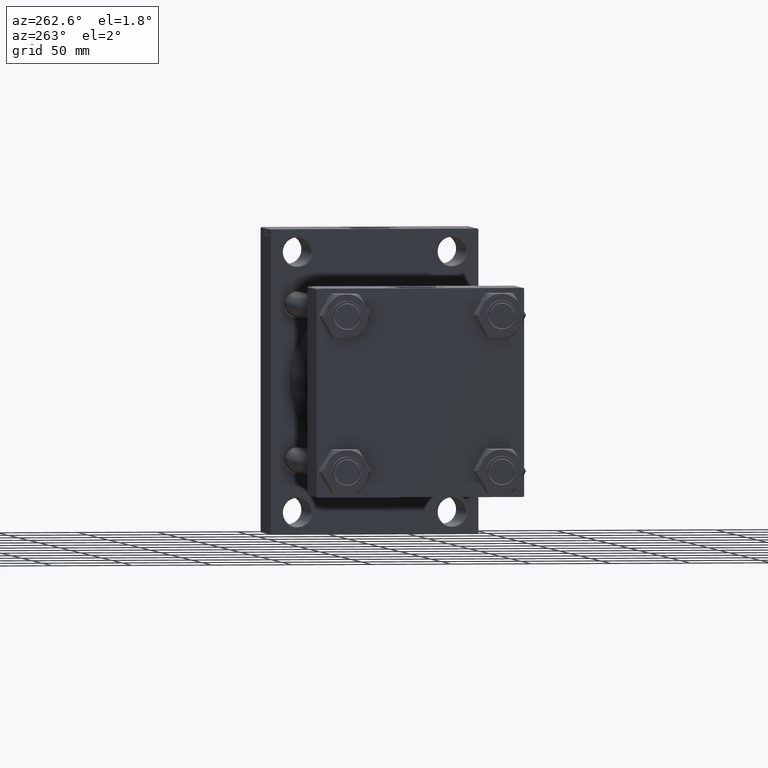
[diagram: clean part render]
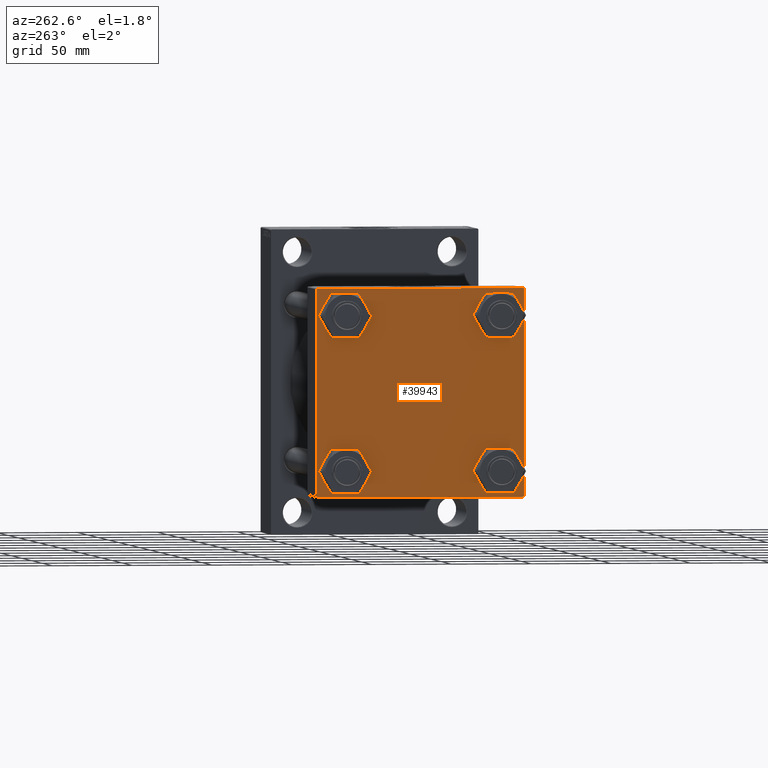
[diagram: same view with one face highlighted and labeled with its STEP entity id]
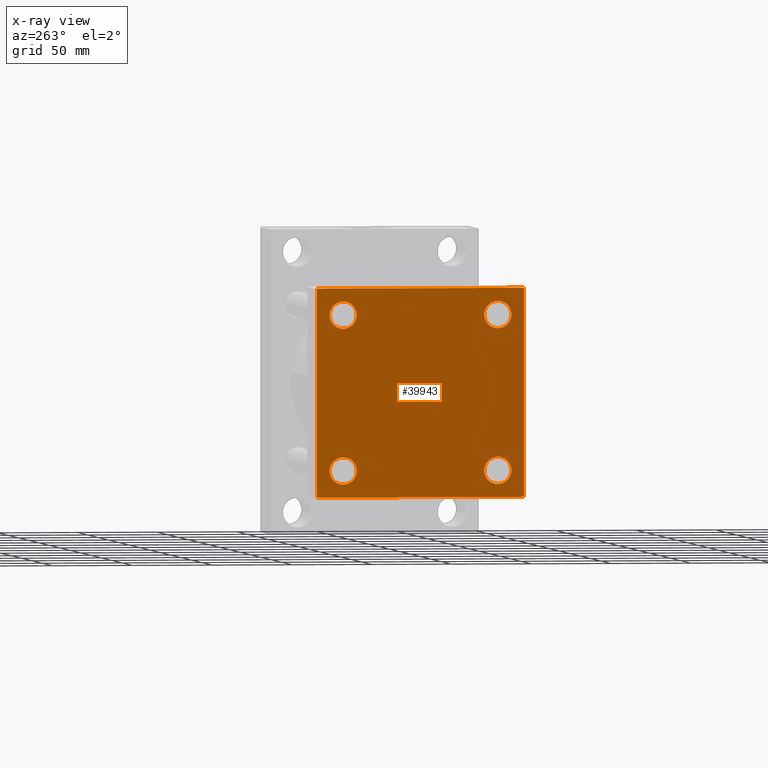
[diagram: x-ray of the same camera — body ghosted, the highlighted face saturated]
A machine part, auxiliary view. The second image highlights one B-rep face of the part: STEP entity #39943.
The next image is the same camera in x-ray: the body ghosted, the highlighted face saturated — about 0% of this face is hidden behind the body in this view.
In plain terms, the highlighted planar face has unit normal (-1, 0, 0).
Its self-contained STEP definition (entity closure, byte-faithful):
#82 = DIRECTION ( 'NONE',  ( 0.000000000000000000, 0.000000000000000000, 1.000000000000000000 ) ) ;
#132 = ORIENTED_EDGE ( 'NONE', *, *, #45294, .T. ) ;
#336 = EDGE_LOOP ( 'NONE', ( #22134, #7282, #3020, #9704, #5856, #39464, #5318, #40330 ) ) ;
#428 = CIRCLE ( 'NONE', #14449, 8.500000000000007105 ) ;
#563 = AXIS2_PLACEMENT_3D ( 'NONE', #11394, #26051, #10925 ) ;
#889 = ORIENTED_EDGE ( 'NONE', *, *, #22890, .T. ) ;
#1000 = CARTESIAN_POINT ( 'NONE',  ( 0.000000000000000000, 65.00000000000000000, 65.00000000000001421 ) ) ;
#1407 = LINE ( 'NONE', #31193, #23632 ) ;
#1424 = FACE_BOUND ( 'NONE', #31023, .T. ) ;
#2214 = AXIS2_PLACEMENT_3D ( 'NONE', #20363, #41259, #16695 ) ;
#2627 = EDGE_LOOP ( 'NONE', ( #19814, #14907 ) ) ;
#3020 = ORIENTED_EDGE ( 'NONE', *, *, #16401, .T. ) ;
#3210 = DIRECTION ( 'NONE',  ( 1.000000000000000000, -0.000000000000000000, 0.000000000000000000 ) ) ;
#3513 = DIRECTION ( 'NONE',  ( 0.000000000000000000, 0.000000000000000000, -1.000000000000000000 ) ) ;
#3514 = EDGE_LOOP ( 'NONE', ( #12391, #31975 ) ) ;
#3668 = VERTEX_POINT ( 'NONE', #30855 ) ;
#3730 = CIRCLE ( 'NONE', #42780, 8.500000000000007105 ) ;
#3972 = VERTEX_POINT ( 'NONE', #13851 ) ;
#4038 = DIRECTION ( 'NONE',  ( 0.000000000000000000, -0.7071067811865279218, 0.7071067811865671127 ) ) ;
#4106 = DIRECTION ( 'NONE',  ( -1.000000000000000000, 0.000000000000000000, -0.000000000000000000 ) ) ;
#4394 = EDGE_CURVE ( 'NONE', #44506, #43543, #7440, .T. ) ;
#4460 = CIRCLE ( 'NONE', #563, 8.500000000000007105 ) ;
#4987 = CARTESIAN_POINT ( 'NONE',  ( 0.000000000000000000, 48.45000000000000995, 56.95000000000002416 ) ) ;
#5092 = DIRECTION ( 'NONE',  ( -0.000000000000000000, -0.7071067811865474617, -0.7071067811865474617 ) ) ;
#5318 = ORIENTED_EDGE ( 'NONE', *, *, #19158, .F. ) ;
#5416 = VERTEX_POINT ( 'NONE', #4987 ) ;
#5856 = ORIENTED_EDGE ( 'NONE', *, *, #4394, .F. ) ;
#7282 = ORIENTED_EDGE ( 'NONE', *, *, #46844, .T. ) ;
#7440 = LINE ( 'NONE', #26954, #45659 ) ;
#7816 = CIRCLE ( 'NONE', #22625, 8.500000000000007105 ) ;
#7892 = VERTEX_POINT ( 'NONE', #36570 ) ;
#8401 = DIRECTION ( 'NONE',  ( 0.000000000000000000, 0.000000000000000000, -1.000000000000000000 ) ) ;
#8439 = CIRCLE ( 'NONE', #2214, 8.500000000000007105 ) ;
#8518 = CARTESIAN_POINT ( 'NONE',  ( 0.000000000000000000, -65.00000000000000000, -64.49999999999991473 ) ) ;
#8730 = FACE_BOUND ( 'NONE', #33581, .T. ) ;
#9704 = ORIENTED_EDGE ( 'NONE', *, *, #10919, .T. ) ;
#9770 = CARTESIAN_POINT ( 'NONE',  ( 0.000000000000000000, 48.45000000000000995, 48.45000000000001705 ) ) ;
#10642 = VERTEX_POINT ( 'NONE', #31668 ) ;
#10919 = EDGE_CURVE ( 'NONE', #17568, #43543, #27404, .T. ) ;
#10925 = DIRECTION ( 'NONE',  ( 0.000000000000000000, 0.000000000000000000, 1.000000000000000000 ) ) ;
#11200 = VECTOR ( 'NONE', #4038, 1000.000000000000000 ) ;
#11394 = CARTESIAN_POINT ( 'NONE',  ( 0.000000000000000000, 48.45000000000000995, 48.45000000000001705 ) ) ;
#11903 = FACE_OUTER_BOUND ( 'NONE', #336, .T. ) ;
#12391 = ORIENTED_EDGE ( 'NONE', *, *, #36171, .T. ) ;
#13329 = EDGE_CURVE ( 'NONE', #45782, #30366, #1407, .T. ) ;
#13792 = LINE ( 'NONE', #21604, #18294 ) ;
#13820 = VERTEX_POINT ( 'NONE', #22534 ) ;
#13851 = CARTESIAN_POINT ( 'NONE',  ( 0.000000000000000000, 64.49999999999997158, -64.99999999999998579 ) ) ;
#14026 = CARTESIAN_POINT ( 'NONE',  ( 0.000000000000000000, -48.44999999999999574, -39.95000000000001705 ) ) ;
#14237 = LINE ( 'NONE', #47740, #18605 ) ;
#14449 = AXIS2_PLACEMENT_3D ( 'NONE', #30334, #37942, #19334 ) ;
#14907 = ORIENTED_EDGE ( 'NONE', *, *, #32196, .T. ) ;
#15966 = VECTOR ( 'NONE', #17377, 1000.000000000000000 ) ;
#16296 = FACE_BOUND ( 'NONE', #2627, .T. ) ;
#16401 = EDGE_CURVE ( 'NONE', #3972, #17568, #32301, .T. ) ;
#16695 = DIRECTION ( 'NONE',  ( 0.000000000000000000, 0.000000000000000000, 1.000000000000000000 ) ) ;
#17138 = CARTESIAN_POINT ( 'NONE',  ( 0.000000000000000000, 65.00000000000000000, 64.49999999999998579 ) ) ;
#17377 = DIRECTION ( 'NONE',  ( 0.000000000000000000, -1.000000000000000000, -1.067522139062650425E-16 ) ) ;
#17568 = VERTEX_POINT ( 'NONE', #44860 ) ;
#18090 = DIRECTION ( 'NONE',  ( 0.000000000000000000, 0.000000000000000000, 1.000000000000000000 ) ) ;
#18294 = VECTOR ( 'NONE', #21848, 1000.000000000000000 ) ;
#18605 = VECTOR ( 'NONE', #3513, 1000.000000000000000 ) ;
#18999 = PLANE ( 'NONE',  #24737 ) ;
#19158 = EDGE_CURVE ( 'NONE', #45782, #10642, #20741, .T. ) ;
#19334 = DIRECTION ( 'NONE',  ( 0.000000000000000000, 0.000000000000000000, 1.000000000000000000 ) ) ;
#19581 = DIRECTION ( 'NONE',  ( 1.000000000000000000, -0.000000000000000000, 0.000000000000000000 ) ) ;
#19660 = CARTESIAN_POINT ( 'NONE',  ( 0.000000000000000000, -48.44999999999999574, -56.95000000000003837 ) ) ;
#19781 = DIRECTION ( 'NONE',  ( 0.000000000000000000, -1.000000000000000000, -1.067522139062650425E-16 ) ) ;
#19814 = ORIENTED_EDGE ( 'NONE', *, *, #39502, .T. ) ;
#19957 = FACE_BOUND ( 'NONE', #3514, .T. ) ;
#20363 = CARTESIAN_POINT ( 'NONE',  ( 0.000000000000000000, -48.44999999999999574, 48.45000000000003126 ) ) ;
#20464 = EDGE_CURVE ( 'NONE', #29807, #21813, #33285, .T. ) ;
#20741 = LINE ( 'NONE', #1000, #32440 ) ;
#21604 = CARTESIAN_POINT ( 'NONE',  ( -0.000000000000000000, -64.74999999999819522, 64.75000000000179057 ) ) ;
#21813 = VERTEX_POINT ( 'NONE', #14026 ) ;
#21848 = DIRECTION ( 'NONE',  ( -0.000000000000000000, 0.7071067811865672237, 0.7071067811865279218 ) ) ;
#22052 = CARTESIAN_POINT ( 'NONE',  ( 0.000000000000000000, -48.44999999999999574, 39.95000000000001705 ) ) ;
#22134 = ORIENTED_EDGE ( 'NONE', *, *, #47982, .T. ) ;
#22353 = VERTEX_POINT ( 'NONE', #42319 ) ;
#22534 = CARTESIAN_POINT ( 'NONE',  ( 0.000000000000000000, 48.45000000000000995, -56.95000000000002416 ) ) ;
#22614 = CARTESIAN_POINT ( 'NONE',  ( 0.000000000000000000, -48.44999999999999574, -48.45000000000003126 ) ) ;
#22625 = AXIS2_PLACEMENT_3D ( 'NONE', #9770, #35933, #24652 ) ;
#22875 = DIRECTION ( 'NONE',  ( 0.000000000000000000, 0.7071067811865474617, -0.7071067811865474617 ) ) ;
#22890 = EDGE_CURVE ( 'NONE', #21813, #29807, #23172, .T. ) ;
#23172 = CIRCLE ( 'NONE', #36512, 8.500000000000007105 ) ;
#23632 = VECTOR ( 'NONE', #22875, 1000.000000000000114 ) ;
#23880 = AXIS2_PLACEMENT_3D ( 'NONE', #22614, #45128, #45364 ) ;
#24652 = DIRECTION ( 'NONE',  ( 0.000000000000000000, 0.000000000000000000, 1.000000000000000000 ) ) ;
#24658 = VERTEX_POINT ( 'NONE', #22052 ) ;
#24737 = AXIS2_PLACEMENT_3D ( 'NONE', #26803, #4106, #45901 ) ;
#24988 = ORIENTED_EDGE ( 'NONE', *, *, #20464, .T. ) ;
#25466 = CARTESIAN_POINT ( 'NONE',  ( 0.000000000000000000, 48.45000000000000995, -48.45000000000001705 ) ) ;
#25470 = CARTESIAN_POINT ( 'NONE',  ( 0.000000000000000000, -48.44999999999999574, -48.45000000000003126 ) ) ;
#25627 = CIRCLE ( 'NONE', #33458, 8.500000000000007105 ) ;
#26051 = DIRECTION ( 'NONE',  ( 1.000000000000000000, -0.000000000000000000, 0.000000000000000000 ) ) ;
#26374 = VECTOR ( 'NONE', #5092, 1000.000000000000114 ) ;
#26803 = CARTESIAN_POINT ( 'NONE',  ( 0.000000000000000000, 0.000000000000000000, 0.000000000000000000 ) ) ;
#26954 = CARTESIAN_POINT ( 'NONE',  ( 0.000000000000000000, -65.00000000000000000, 65.00000000000000000 ) ) ;
#27404 = LINE ( 'NONE', #37549, #11200 ) ;
#27600 = EDGE_CURVE ( 'NONE', #24658, #30361, #8439, .T. ) ;
#29145 = EDGE_CURVE ( 'NONE', #3668, #13820, #25627, .T. ) ;
#29807 = VERTEX_POINT ( 'NONE', #19660 ) ;
#30101 = DIRECTION ( 'NONE',  ( 1.000000000000000000, -0.000000000000000000, 0.000000000000000000 ) ) ;
#30334 = CARTESIAN_POINT ( 'NONE',  ( 0.000000000000000000, -48.44999999999999574, 48.45000000000003126 ) ) ;
#30361 = VERTEX_POINT ( 'NONE', #37628 ) ;
#30366 = VERTEX_POINT ( 'NONE', #17138 ) ;
#30855 = CARTESIAN_POINT ( 'NONE',  ( 0.000000000000000000, 48.45000000000000995, -39.95000000000000284 ) ) ;
#31023 = EDGE_LOOP ( 'NONE', ( #32246, #132 ) ) ;
#31193 = CARTESIAN_POINT ( 'NONE',  ( 0.000000000000000000, 64.74999999999998579, 64.74999999999998579 ) ) ;
#31668 = CARTESIAN_POINT ( 'NONE',  ( 0.000000000000000000, -64.49999999999997158, 65.00000000000000000 ) ) ;
#31975 = ORIENTED_EDGE ( 'NONE', *, *, #27600, .T. ) ;
#32196 = EDGE_CURVE ( 'NONE', #7892, #5416, #7816, .T. ) ;
#32246 = ORIENTED_EDGE ( 'NONE', *, *, #29145, .T. ) ;
#32301 = LINE ( 'NONE', #39668, #15966 ) ;
#32440 = VECTOR ( 'NONE', #19781, 1000.000000000000000 ) ;
#33285 = CIRCLE ( 'NONE', #23880, 8.500000000000007105 ) ;
#33458 = AXIS2_PLACEMENT_3D ( 'NONE', #44750, #3210, #18090 ) ;
#33500 = CARTESIAN_POINT ( 'NONE',  ( 0.000000000000000000, 64.49999999999997158, 65.00000000000001421 ) ) ;
#33581 = EDGE_LOOP ( 'NONE', ( #889, #24988 ) ) ;
#34660 = LINE ( 'NONE', #38594, #26374 ) ;
#35023 = EDGE_CURVE ( 'NONE', #44506, #10642, #13792, .T. ) ;
#35933 = DIRECTION ( 'NONE',  ( 1.000000000000000000, -0.000000000000000000, 0.000000000000000000 ) ) ;
#36171 = EDGE_CURVE ( 'NONE', #30361, #24658, #428, .T. ) ;
#36512 = AXIS2_PLACEMENT_3D ( 'NONE', #25470, #30101, #44321 ) ;
#36570 = CARTESIAN_POINT ( 'NONE',  ( 0.000000000000000000, 48.45000000000000995, 39.95000000000000284 ) ) ;
#37549 = CARTESIAN_POINT ( 'NONE',  ( 0.000000000000000000, -64.75000000000176215, -64.74999999999816680 ) ) ;
#37628 = CARTESIAN_POINT ( 'NONE',  ( 0.000000000000000000, -48.44999999999999574, 56.95000000000003837 ) ) ;
#37942 = DIRECTION ( 'NONE',  ( 1.000000000000000000, -0.000000000000000000, 0.000000000000000000 ) ) ;
#38594 = CARTESIAN_POINT ( 'NONE',  ( 0.000000000000000000, 64.74999999999997158, -64.74999999999997158 ) ) ;
#39376 = CARTESIAN_POINT ( 'NONE',  ( 0.000000000000000000, -65.00000000000000000, 64.50000000000000000 ) ) ;
#39464 = ORIENTED_EDGE ( 'NONE', *, *, #35023, .T. ) ;
#39502 = EDGE_CURVE ( 'NONE', #5416, #7892, #4460, .T. ) ;
#39668 = CARTESIAN_POINT ( 'NONE',  ( 0.000000000000000000, 65.00000000000000000, -64.99999999999998579 ) ) ;
#39943 = ADVANCED_FACE ( 'NONE', ( #19957, #8730, #1424, #16296, #11903 ), #18999, .T. ) ;
#40330 = ORIENTED_EDGE ( 'NONE', *, *, #13329, .T. ) ;
#41259 = DIRECTION ( 'NONE',  ( 1.000000000000000000, -0.000000000000000000, 0.000000000000000000 ) ) ;
#42319 = CARTESIAN_POINT ( 'NONE',  ( 0.000000000000000000, 65.00000000000000000, -64.49999999999995737 ) ) ;
#42780 = AXIS2_PLACEMENT_3D ( 'NONE', #25466, #19581, #82 ) ;
#43543 = VERTEX_POINT ( 'NONE', #8518 ) ;
#44321 = DIRECTION ( 'NONE',  ( 0.000000000000000000, 0.000000000000000000, 1.000000000000000000 ) ) ;
#44506 = VERTEX_POINT ( 'NONE', #39376 ) ;
#44750 = CARTESIAN_POINT ( 'NONE',  ( 0.000000000000000000, 48.45000000000000995, -48.45000000000001705 ) ) ;
#44860 = CARTESIAN_POINT ( 'NONE',  ( 0.000000000000000000, -64.49999999999994316, -65.00000000000000000 ) ) ;
#45128 = DIRECTION ( 'NONE',  ( 1.000000000000000000, -0.000000000000000000, 0.000000000000000000 ) ) ;
#45294 = EDGE_CURVE ( 'NONE', #13820, #3668, #3730, .T. ) ;
#45364 = DIRECTION ( 'NONE',  ( 0.000000000000000000, 0.000000000000000000, 1.000000000000000000 ) ) ;
#45659 = VECTOR ( 'NONE', #8401, 1000.000000000000000 ) ;
#45782 = VERTEX_POINT ( 'NONE', #33500 ) ;
#45901 = DIRECTION ( 'NONE',  ( -0.000000000000000000, 0.000000000000000000, 1.000000000000000000 ) ) ;
#46844 = EDGE_CURVE ( 'NONE', #22353, #3972, #34660, .T. ) ;
#47740 = CARTESIAN_POINT ( 'NONE',  ( 0.000000000000000000, 65.00000000000000000, 65.00000000000001421 ) ) ;
#47982 = EDGE_CURVE ( 'NONE', #30366, #22353, #14237, .T. ) ;